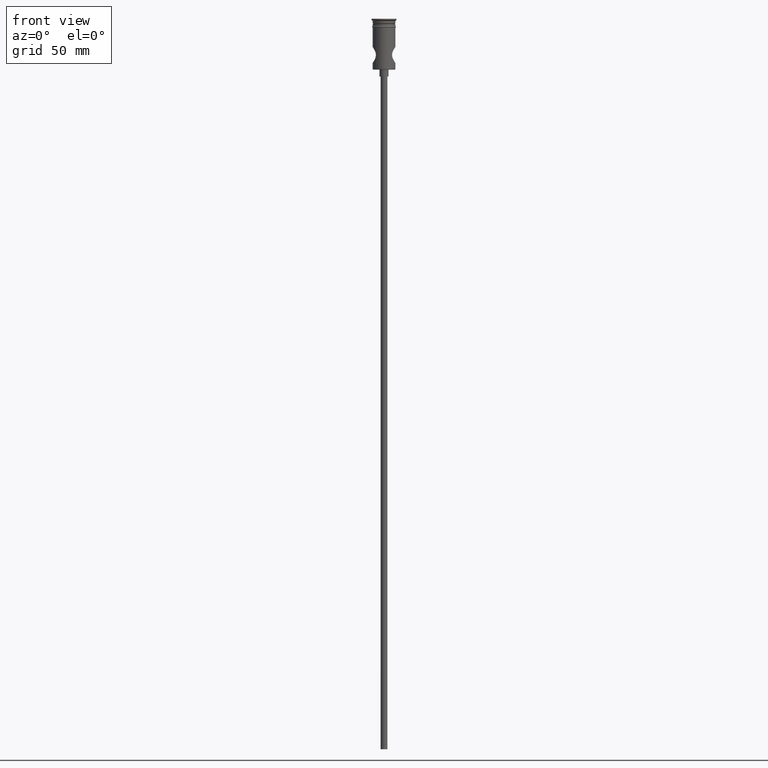
[diagram: clean part render]
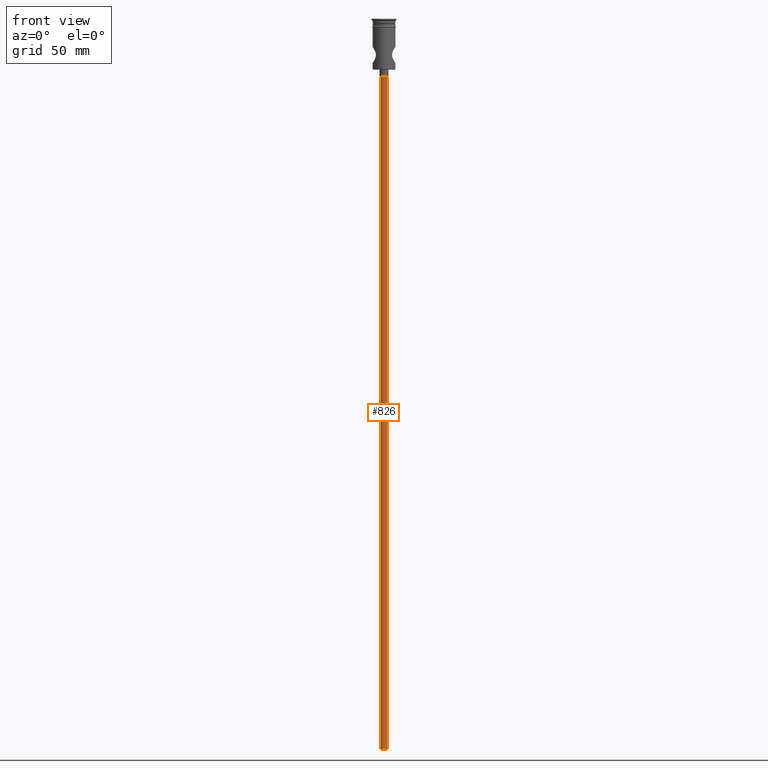
[diagram: same view with one face highlighted and labeled with its STEP entity id]
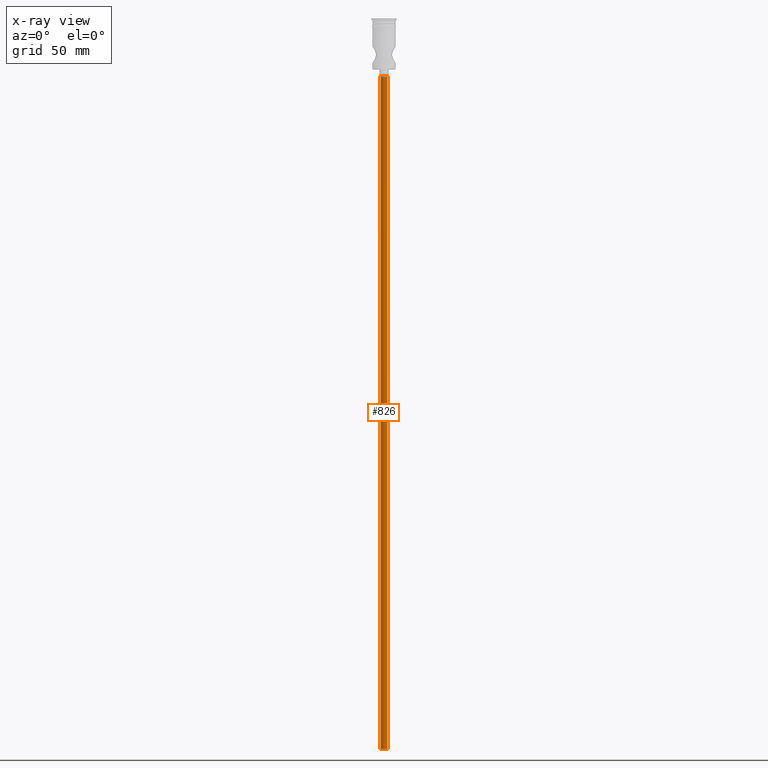
[diagram: x-ray of the same camera — body ghosted, the highlighted face saturated]
A machine part, front view. The second image highlights one B-rep face of the part: STEP entity #826.
The next image is the same camera in x-ray: the body ghosted, the highlighted face saturated — about 0% of this face is hidden behind the body in this view.
In plain terms, the highlighted cylindrical surface (edge-blend (fillet) strip) has radius 1.5 mm, axis along (-0, -0, 1).
Its self-contained STEP definition (entity closure, byte-faithful):
#38 = CARTESIAN_POINT ( 'NONE',  ( 1.500000000000000222, 0.000000000000000000, -322.5000000000000000 ) ) ;
#80 = VERTEX_POINT ( 'NONE', #375 ) ;
#105 = FACE_OUTER_BOUND ( 'NONE', #1118, .T. ) ;
#145 = ORIENTED_EDGE ( 'NONE', *, *, #1076, .T. ) ;
#152 = ORIENTED_EDGE ( 'NONE', *, *, #1128, .F. ) ;
#252 = CIRCLE ( 'NONE', #1430, 1.500000000000000222 ) ;
#325 = CARTESIAN_POINT ( 'NONE',  ( -1.500000000000000222, 1.836970198721030181E-16, -322.5000000000000000 ) ) ;
#355 = CARTESIAN_POINT ( 'NONE',  ( -1.500000000000000222, 1.836970198721030181E-16, -322.5000000000000000 ) ) ;
#364 = AXIS2_PLACEMENT_3D ( 'NONE', #1152, #1051, #944 ) ;
#375 = CARTESIAN_POINT ( 'NONE',  ( 1.500000000000000222, 0.000000000000000000, -322.5000000000000000 ) ) ;
#417 = CIRCLE ( 'NONE', #364, 1.500000000000000222 ) ;
#423 = CARTESIAN_POINT ( 'NONE',  ( 0.000000000000000000, 0.000000000000000000, -322.5000000000000000 ) ) ;
#464 = AXIS2_PLACEMENT_3D ( 'NONE', #981, #869, #988 ) ;
#568 = EDGE_CURVE ( 'NONE', #80, #1274, #252, .T. ) ;
#611 = EDGE_CURVE ( 'NONE', #659, #646, #417, .T. ) ;
#625 = ORIENTED_EDGE ( 'NONE', *, *, #611, .T. ) ;
#632 = ORIENTED_EDGE ( 'NONE', *, *, #568, .F. ) ;
#646 = VERTEX_POINT ( 'NONE', #1114 ) ;
#659 = VERTEX_POINT ( 'NONE', #992 ) ;
#826 = ADVANCED_FACE ( 'NONE', ( #105 ), #1003, .T. ) ;
#869 = DIRECTION ( 'NONE',  ( -0.000000000000000000, -0.000000000000000000, 1.000000000000000000 ) ) ;
#900 = VECTOR ( 'NONE', #980, 1000.000000000000000 ) ;
#944 = DIRECTION ( 'NONE',  ( -1.000000000000000000, 0.000000000000000000, 0.000000000000000000 ) ) ;
#980 = DIRECTION ( 'NONE',  ( -0.000000000000000000, -0.000000000000000000, 1.000000000000000000 ) ) ;
#981 = CARTESIAN_POINT ( 'NONE',  ( 0.000000000000000000, 0.000000000000000000, -322.5000000000000000 ) ) ;
#988 = DIRECTION ( 'NONE',  ( 1.000000000000000000, 0.000000000000000000, 0.000000000000000000 ) ) ;
#992 = CARTESIAN_POINT ( 'NONE',  ( 1.500000000000000222, 0.000000000000000000, -25.50000000000000000 ) ) ;
#1003 = CYLINDRICAL_SURFACE ( 'NONE', #464, 1.500000000000000222 ) ;
#1044 = LINE ( 'NONE', #38, #1260 ) ;
#1051 = DIRECTION ( 'NONE',  ( 0.000000000000000000, 0.000000000000000000, -1.000000000000000000 ) ) ;
#1076 = EDGE_CURVE ( 'NONE', #80, #659, #1044, .T. ) ;
#1082 = DIRECTION ( 'NONE',  ( -1.000000000000000000, 0.000000000000000000, 0.000000000000000000 ) ) ;
#1114 = CARTESIAN_POINT ( 'NONE',  ( -1.500000000000000222, 1.836970198721030181E-16, -25.50000000000000000 ) ) ;
#1118 = EDGE_LOOP ( 'NONE', ( #152, #632, #145, #625 ) ) ;
#1128 = EDGE_CURVE ( 'NONE', #1274, #646, #1301, .T. ) ;
#1152 = CARTESIAN_POINT ( 'NONE',  ( 0.000000000000000000, 0.000000000000000000, -25.50000000000000000 ) ) ;
#1260 = VECTOR ( 'NONE', #1261, 1000.000000000000000 ) ;
#1261 = DIRECTION ( 'NONE',  ( -0.000000000000000000, -0.000000000000000000, 1.000000000000000000 ) ) ;
#1274 = VERTEX_POINT ( 'NONE', #355 ) ;
#1301 = LINE ( 'NONE', #325, #900 ) ;
#1397 = DIRECTION ( 'NONE',  ( 0.000000000000000000, 0.000000000000000000, -1.000000000000000000 ) ) ;
#1430 = AXIS2_PLACEMENT_3D ( 'NONE', #423, #1397, #1082 ) ;